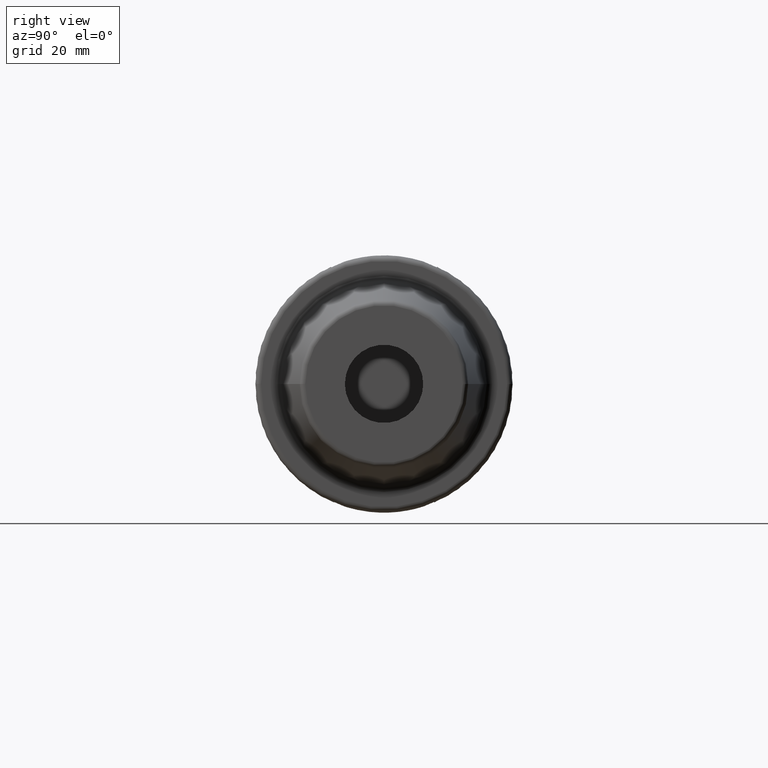
[diagram: clean part render]
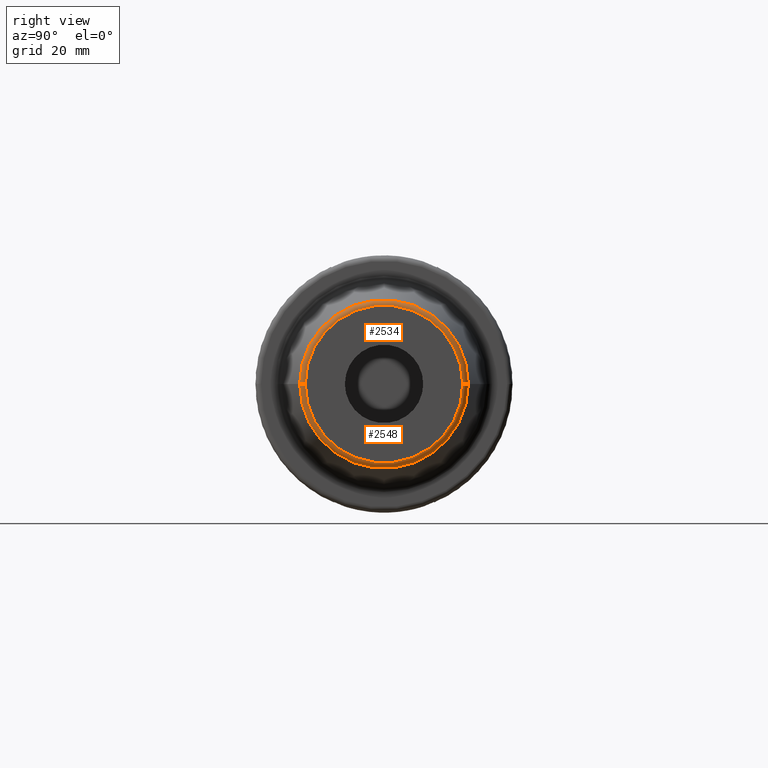
[diagram: same view with one multi-face feature highlighted, each face labeled with its STEP entity id]
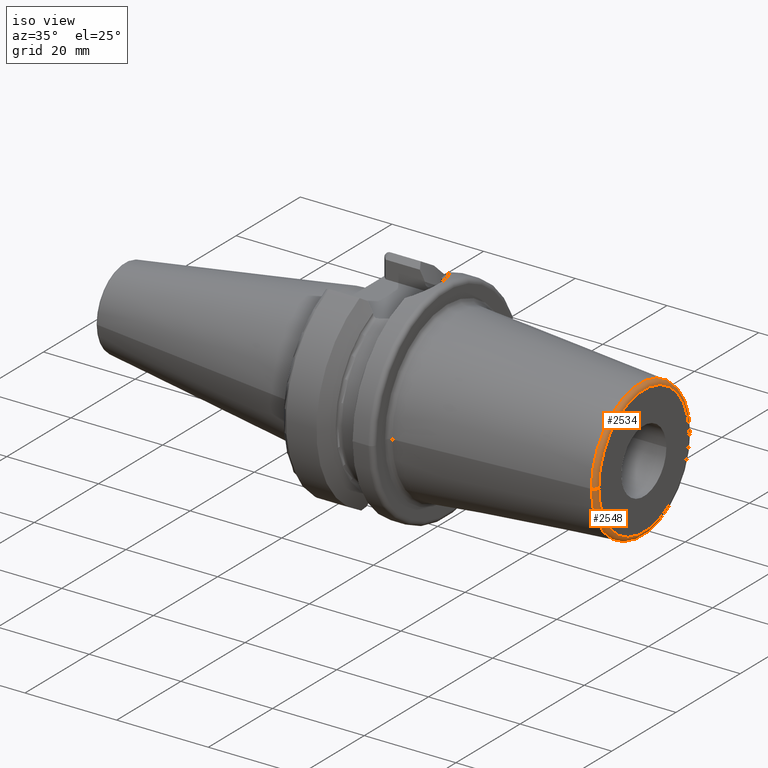
[diagram: same view with one multi-face feature highlighted, each face labeled with its STEP entity id]
A machine part, right view. The highlighted faces form ONE feature: a constant-radius fillet chain: 2 tangent blend faces with common blend radius 1 mm. The faces share edges in the B-rep.
A second angle (iso view) of the same feature is appended — it is thin or edge-on in the first view.
Their STEP definitions:
[1] entity #2548 (Torus):
#852=CARTESIAN_POINT('',(6.4E1,-1.407560950834E1,-1.619752942883E-11));
#853=DIRECTION('',(0.E0,-1.150751369194E-12,1.E0));
#854=DIRECTION('',(7.845909572796E-2,-9.969173337331E-1,-1.147204688395E-12));
#855=AXIS2_PLACEMENT_3D('',#852,#853,#854);
#857=CARTESIAN_POINT('',(6.4E1,1.407560950834E1,1.619762657334E-11));
#858=DIRECTION('',(0.E0,1.150758308088E-12,-1.E0));
#859=DIRECTION('',(7.845909572796E-2,9.969173337331E-1,1.147211605899E-12));
#860=AXIS2_PLACEMENT_3D('',#857,#858,#859);
#862=CARTESIAN_POINT('',(6.407845909573E1,0.E0,0.E0));
#863=DIRECTION('',(-1.E0,0.E0,0.E0));
#864=DIRECTION('',(0.E0,1.E0,0.E0));
#865=AXIS2_PLACEMENT_3D('',#862,#863,#864);
#890=CARTESIAN_POINT('',(6.5E1,0.E0,0.E0));
#891=DIRECTION('',(-1.E0,0.E0,0.E0));
#892=DIRECTION('',(0.E0,1.E0,0.E0));
#893=AXIS2_PLACEMENT_3D('',#890,#891,#892);
#1365=CARTESIAN_POINT('',(6.407845909573E1,1.507252684207E1,0.E0));
#1366=CARTESIAN_POINT('',(6.407845909573E1,-1.507252684207E1,0.E0));
#1367=VERTEX_POINT('',#1365);
#1368=VERTEX_POINT('',#1366);
#1369=CARTESIAN_POINT('',(6.5E1,1.407560950834E1,0.E0));
#1370=CARTESIAN_POINT('',(6.5E1,-1.407560950834E1,0.E0));
#1371=VERTEX_POINT('',#1369);
#1372=VERTEX_POINT('',#1370);
#2535=CARTESIAN_POINT('',(6.4E1,0.E0,0.E0));
#2536=DIRECTION('',(1.E0,0.E0,0.E0));
#2537=DIRECTION('',(0.E0,9.999607716259E-1,8.857494533186E-3));
#2538=AXIS2_PLACEMENT_3D('',#2535,#2536,#2537);
#2539=TOROIDAL_SURFACE('',#2538,1.407560950834E1,1.E0);
#2541=ORIENTED_EDGE('',*,*,#2540,.T.);
#2542=ORIENTED_EDGE('',*,*,#2530,.T.);
#2544=ORIENTED_EDGE('',*,*,#2543,.F.);
#2545=ORIENTED_EDGE('',*,*,#2526,.F.);
#2546=EDGE_LOOP('',(#2541,#2542,#2544,#2545));
#2547=FACE_OUTER_BOUND('',#2546,.F.);
#2548=ADVANCED_FACE('',(#2547),#2539,.T.);
#856=CIRCLE('',#855,1.E0);
#861=CIRCLE('',#860,1.E0);
#866=CIRCLE('',#865,1.507252684207E1);
#894=CIRCLE('',#893,1.407560950834E1);
#2526=EDGE_CURVE('',#1367,#1371,#861,.T.);
#2530=EDGE_CURVE('',#1368,#1372,#856,.T.);
#2540=EDGE_CURVE('',#1367,#1368,#866,.T.);
#2543=EDGE_CURVE('',#1371,#1372,#894,.T.);
[2] entity #2534 (Torus):
#842=CARTESIAN_POINT('',(6.407845909573E1,0.E0,0.E0));
#843=DIRECTION('',(-1.E0,0.E0,0.E0));
#844=DIRECTION('',(0.E0,-1.E0,0.E0));
#845=AXIS2_PLACEMENT_3D('',#842,#843,#844);
#852=CARTESIAN_POINT('',(6.4E1,-1.407560950834E1,-1.619752942883E-11));
#853=DIRECTION('',(0.E0,-1.150751369194E-12,1.E0));
#854=DIRECTION('',(7.845909572796E-2,-9.969173337331E-1,-1.147204688395E-12));
#855=AXIS2_PLACEMENT_3D('',#852,#853,#854);
#857=CARTESIAN_POINT('',(6.4E1,1.407560950834E1,1.619762657334E-11));
#858=DIRECTION('',(0.E0,1.150758308088E-12,-1.E0));
#859=DIRECTION('',(7.845909572796E-2,9.969173337331E-1,1.147211605899E-12));
#860=AXIS2_PLACEMENT_3D('',#857,#858,#859);
#895=CARTESIAN_POINT('',(6.5E1,0.E0,0.E0));
#896=DIRECTION('',(-1.E0,0.E0,0.E0));
#897=DIRECTION('',(0.E0,-1.E0,0.E0));
#898=AXIS2_PLACEMENT_3D('',#895,#896,#897);
#1365=CARTESIAN_POINT('',(6.407845909573E1,1.507252684207E1,0.E0));
#1366=CARTESIAN_POINT('',(6.407845909573E1,-1.507252684207E1,0.E0));
#1367=VERTEX_POINT('',#1365);
#1368=VERTEX_POINT('',#1366);
#1369=CARTESIAN_POINT('',(6.5E1,1.407560950834E1,0.E0));
#1370=CARTESIAN_POINT('',(6.5E1,-1.407560950834E1,0.E0));
#1371=VERTEX_POINT('',#1369);
#1372=VERTEX_POINT('',#1370);
#2520=CARTESIAN_POINT('',(6.4E1,0.E0,0.E0));
#2521=DIRECTION('',(1.E0,0.E0,0.E0));
#2522=DIRECTION('',(0.E0,-9.999607716259E-1,-8.857494533186E-3));
#2523=AXIS2_PLACEMENT_3D('',#2520,#2521,#2522);
#2524=TOROIDAL_SURFACE('',#2523,1.407560950834E1,1.E0);
#2525=ORIENTED_EDGE('',*,*,#2510,.T.);
#2527=ORIENTED_EDGE('',*,*,#2526,.T.);
#2529=ORIENTED_EDGE('',*,*,#2528,.F.);
#2531=ORIENTED_EDGE('',*,*,#2530,.F.);
#2532=EDGE_LOOP('',(#2525,#2527,#2529,#2531));
#2533=FACE_OUTER_BOUND('',#2532,.F.);
#2534=ADVANCED_FACE('',(#2533),#2524,.T.);
#846=CIRCLE('',#845,1.507252684207E1);
#856=CIRCLE('',#855,1.E0);
#861=CIRCLE('',#860,1.E0);
#899=CIRCLE('',#898,1.407560950834E1);
#2510=EDGE_CURVE('',#1368,#1367,#846,.T.);
#2526=EDGE_CURVE('',#1367,#1371,#861,.T.);
#2528=EDGE_CURVE('',#1372,#1371,#899,.T.);
#2530=EDGE_CURVE('',#1368,#1372,#856,.T.);